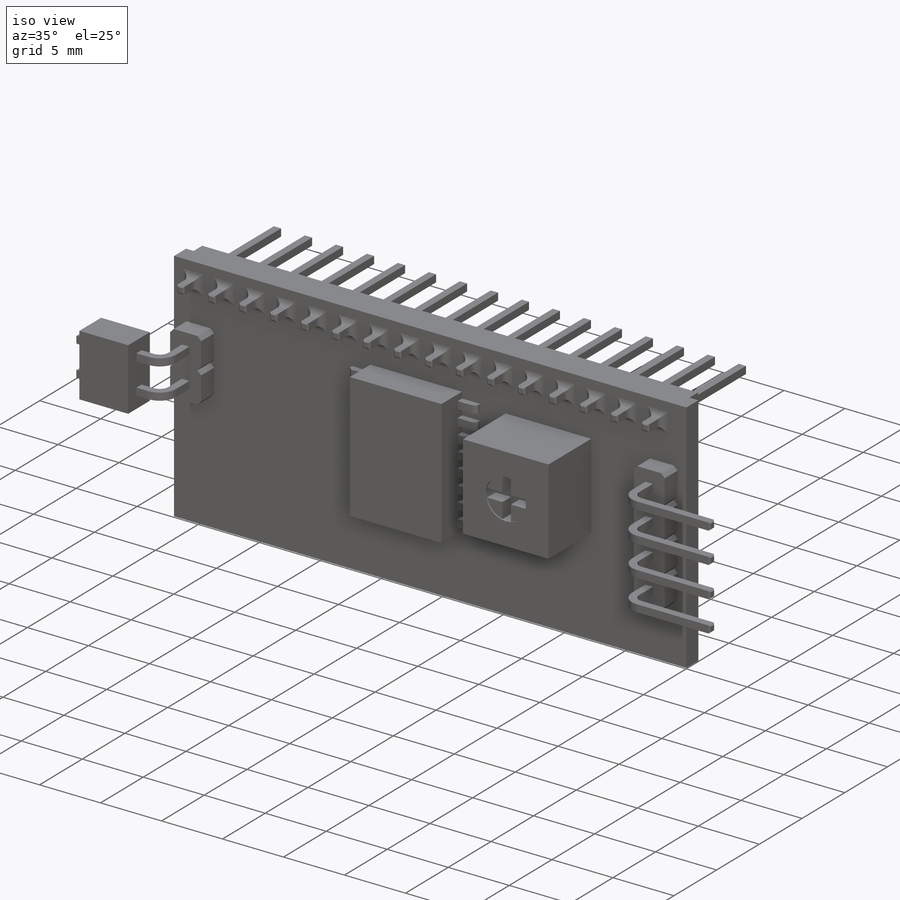
[diagram: iso view]
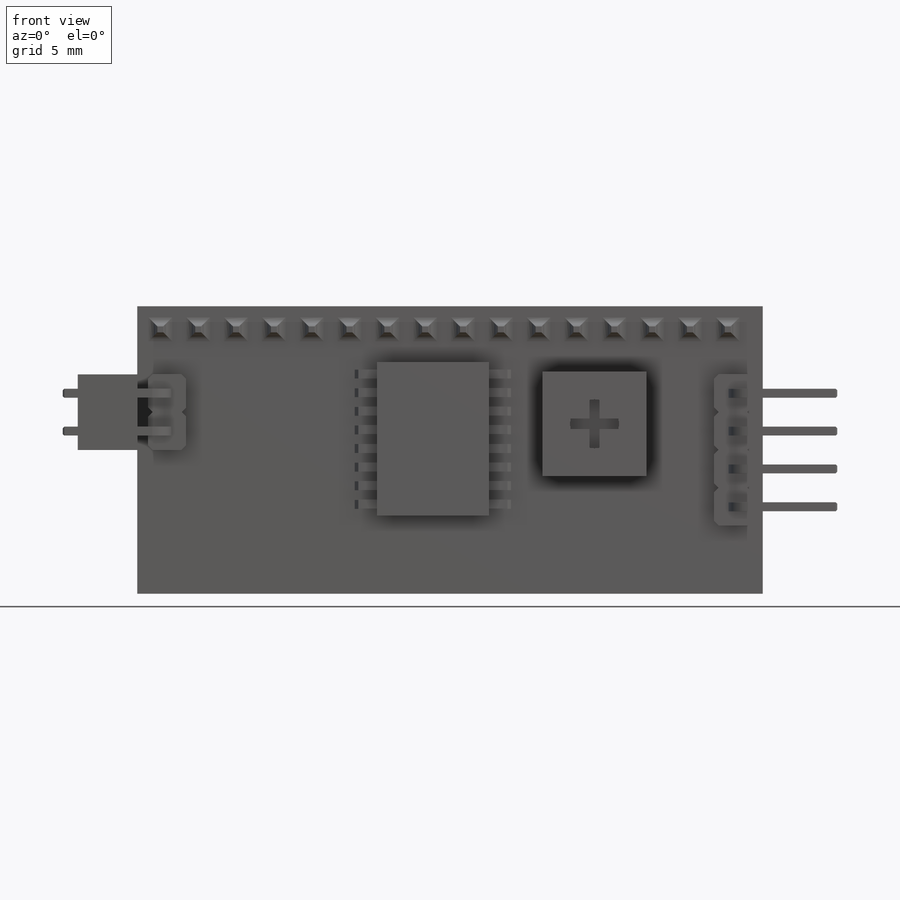
[diagram: front view]
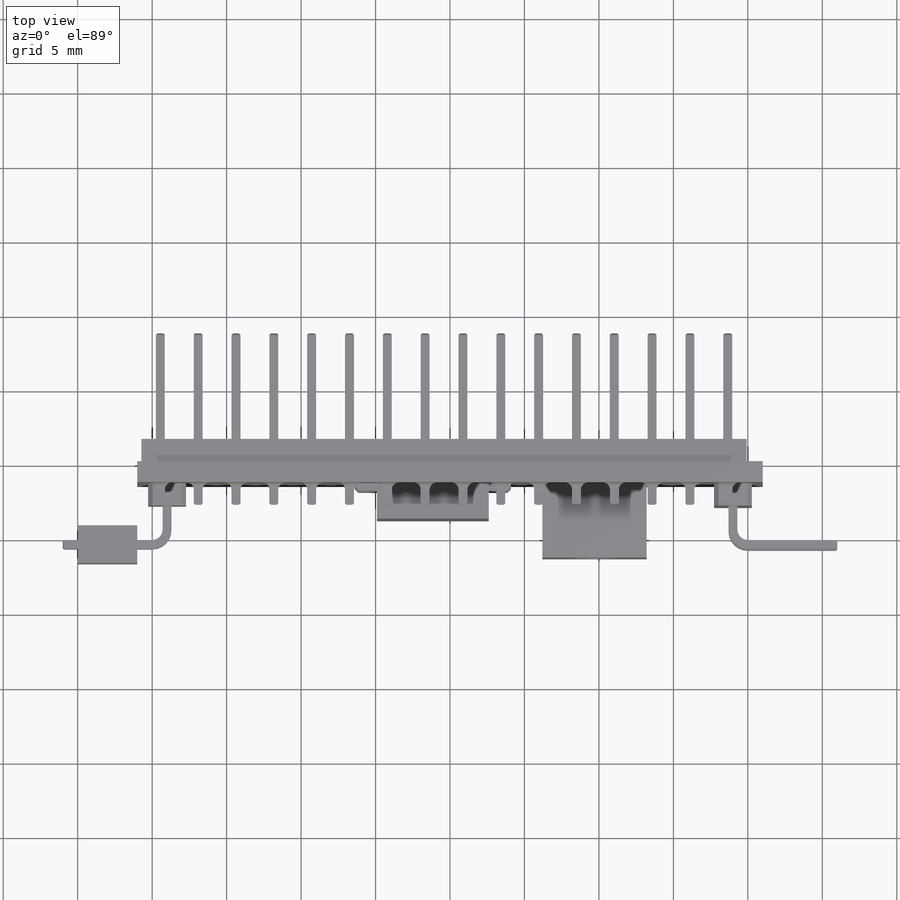
[diagram: top view]
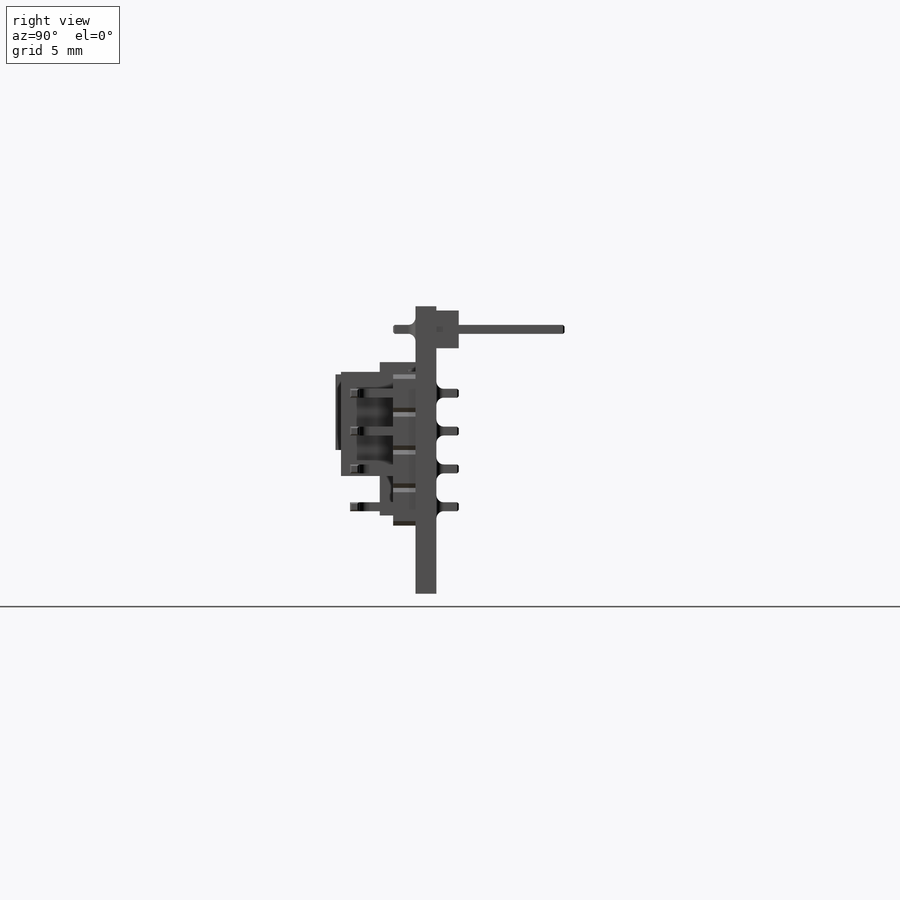
[diagram: right view]
SOLIDWORKS PART (.sldprt)
format: sldprt  version: not decoded by parser v0  size: 1,088,000 bytes
history: native  units: mm
features: sketch x13, extrude x8, chamfer x5, pattern_linear x3, plane x3, mirror x3, fillet x2, cut_extrude x2, material x1, sweep x1 (+13 scaffold rows collapsed)
feature tree (54):
  scaffold x13  (default folders/planes/origin — collapsed)
  material  "Material <not specified>"
  sketch  "Sketch1"  dims[D1=19.3mm D2=42.0mm]
  extrude  "Boss-Extrude1"  Depth=1.4mm
  sketch  "Sketch2"  dims[D1=0.6mm D2=1.25mm D3=1.25mm]
  extrude  "Boss-Extrude2"  Depth=1.5mm
  chamfer  "Chamfer1"  Distance=0.1mm Angle=45deg
  chamfer  "Chamfer2"  Distance=0.1mm Angle=45deg
  fillet  "Fillet1"  Radius=0.5mm
  pattern_linear  "LPattern1"  Count1=16 Count2=1 Spacing1=2.54mm Spacing2=10mm
  plane  "Plane1"  Offset=1.27mm
  sketch  "Sketch3"  dims[D1=1.0mm D2=7.0mm D3=7.0mm D4=1.5mm D5=2.0mm]
  plane  "Plane2"
  sketch  "Sketch4"  dims[D1=0.6mm]
  sweep  "Sweep1"
  sketch  "Sketch5"  dims[D1=2.54mm]
  extrude  "Boss-Extrude3"  Depth=1.5mm
  chamfer  "Chamfer3"  Distance=0.3mm Angle=45deg
  chamfer  "Chamfer4"  Distance=0.1mm Angle=45deg
  fillet  "Fillet2"  Radius=0.5mm
  pattern_linear  "LPattern2"  Count1=2 Count2=1 Spacing1=2.54mm Spacing2=10mm
  mirror  "Mirror1"
  sketch  "Sketch6"  dims[D1=7.0mm D2=7.8mm D3=4.4mm]
  extrude  "Boss-Extrude4"  Depth=5mm
  sketch  "Sketch7"  dims[D1=3.3mm]
  cut_extrude  "Cut-Extrude1"  Depth=0.1mm
  sketch  "Sketch8"  dims[D1=0.7mm D2=0.7mm]
  cut_extrude  "Cut-Extrude2"  Depth=1mm
  sketch  "Sketch9"  dims[D1=0.97mm D2=0.97mm D3=2.54mm D4=0.97mm]
  extrude  "Boss-Extrude5"  Depth=1.5mm
  sketch  "Sketch10"  dims[D1=10.3mm D2=7.5mm D3=3.6mm D4=5.25mm]
  extrude  "Boss-Extrude6"  Depth=2.4mm
  mirror  "Mirror2"
  sketch  "Sketch11"  dims[D1=0.97mm D2=0.97mm D3=2.54mm D4=0.97mm]
  extrude  "Boss-Extrude7"  Depth=4mm
  sketch  "Sketch12"  dims[D1=0.6mm D2=1.5mm D3=0.5mm]
  extrude  "Boss-Extrude8"  Depth=0.5mm
  chamfer  "Chamfer5"  Distance=0.25mm Angle=45deg
  pattern_linear  "LPattern3"  Count1=8 Count2=1 Spacing1=1.25mm Spacing2=10mm
  plane  "Plane3"  Offset=3.75mm
  mirror  "Mirror3"
  sketch  "Sketch14"
decode coverage: 32 of 37 modeling features carry decoded parameters
note: suppression state not decoded; provenance and decode notes live in map.json
